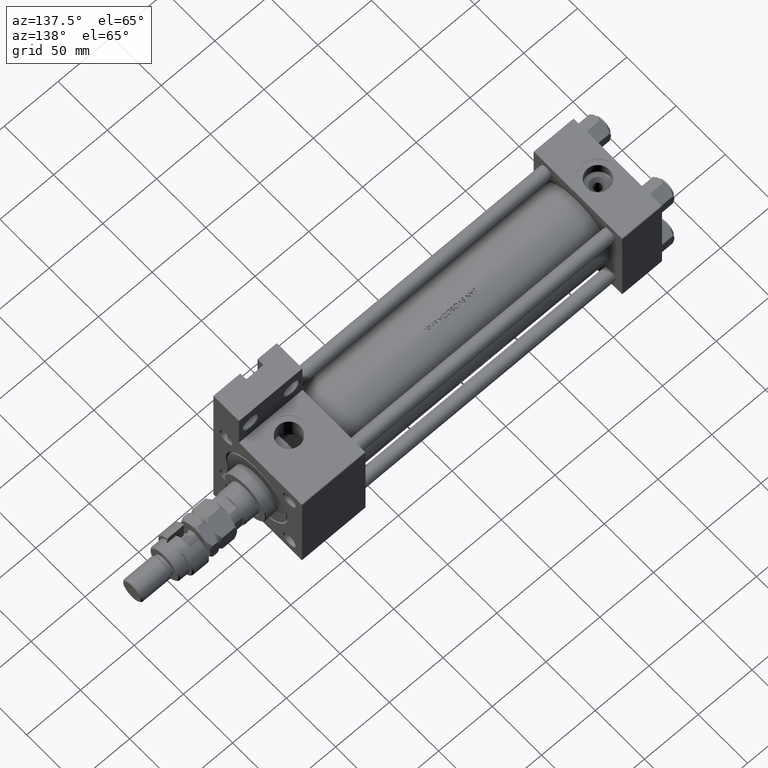
[diagram: clean part render]
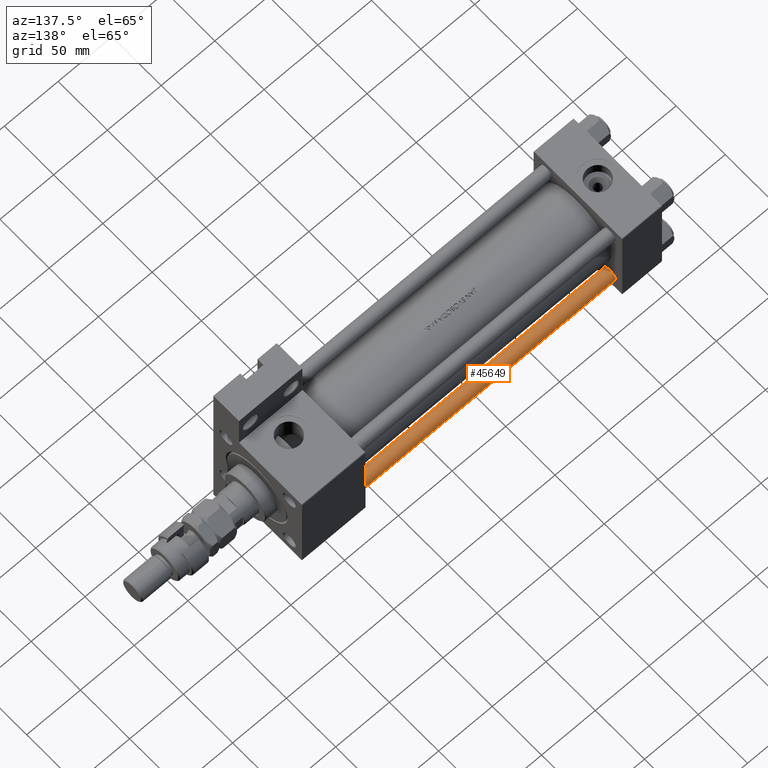
[diagram: same view with one face highlighted and labeled with its STEP entity id]
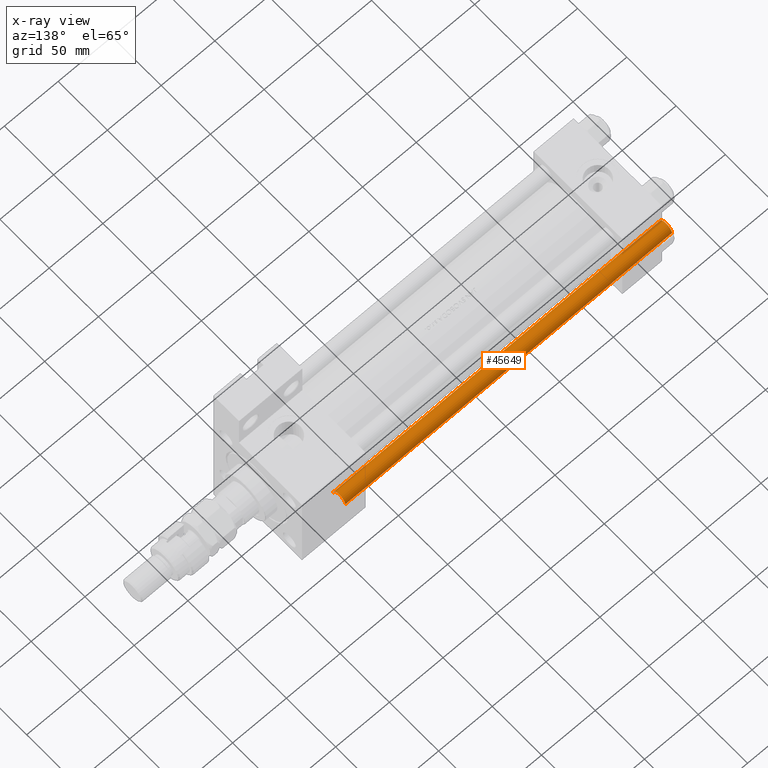
[diagram: x-ray of the same camera — body ghosted, the highlighted face saturated]
A machine part, auxiliary view. The second image highlights one B-rep face of the part: STEP entity #45649.
The next image is the same camera in x-ray: the body ghosted, the highlighted face saturated — about 2% of this face is hidden behind the body in this view.
In plain terms, the highlighted cylindrical surface (edge-blend (fillet) strip) has radius 6 mm, axis along (-1, -0, 0).
Its self-contained STEP definition (entity closure, byte-faithful):
#315 = CARTESIAN_POINT ( 'NONE',  ( -6.000000000000000888, 0.000000000000000000, 305.0000000000000000 ) ) ;
#1113 = VERTEX_POINT ( 'NONE', #3906 ) ;
#3614 = EDGE_CURVE ( 'NONE', #1113, #32902, #8974, .T. ) ;
#3906 = CARTESIAN_POINT ( 'NONE',  ( 6.000000000000000888, 7.347880794884120722E-16, 0.5000000000000004441 ) ) ;
#5911 = EDGE_LOOP ( 'NONE', ( #6683, #46163, #33031, #32039 ) ) ;
#6210 = EDGE_CURVE ( 'NONE', #17051, #40492, #29390, .T. ) ;
#6683 = ORIENTED_EDGE ( 'NONE', *, *, #6210, .T. ) ;
#7572 = CARTESIAN_POINT ( 'NONE',  ( 0.000000000000000000, 0.000000000000000000, 305.0000000000000000 ) ) ;
#8197 = DIRECTION ( 'NONE',  ( -0.000000000000000000, -0.000000000000000000, 1.000000000000000000 ) ) ;
#8974 = CIRCLE ( 'NONE', #27625, 6.000000000000000888 ) ;
#11034 = DIRECTION ( 'NONE',  ( -0.000000000000000000, -0.000000000000000000, -1.000000000000000000 ) ) ;
#14235 = CARTESIAN_POINT ( 'NONE',  ( 6.000000000000000888, 7.347880794884120722E-16, 305.0000000000000000 ) ) ;
#14506 = DIRECTION ( 'NONE',  ( -0.000000000000000000, -0.000000000000000000, -1.000000000000000000 ) ) ;
#16534 = DIRECTION ( 'NONE',  ( -0.000000000000000000, -0.000000000000000000, -1.000000000000000000 ) ) ;
#17051 = VERTEX_POINT ( 'NONE', #40025 ) ;
#17889 = CARTESIAN_POINT ( 'NONE',  ( 0.000000000000000000, 0.000000000000000000, 304.5000000000000000 ) ) ;
#17932 = VECTOR ( 'NONE', #16534, 1000.000000000000000 ) ;
#18562 = EDGE_CURVE ( 'NONE', #17051, #32902, #36737, .T. ) ;
#21481 = CARTESIAN_POINT ( 'NONE',  ( 0.000000000000000000, 0.000000000000000000, 0.5000000000000004441 ) ) ;
#21605 = DIRECTION ( 'NONE',  ( 1.000000000000000000, 0.000000000000000000, 0.000000000000000000 ) ) ;
#26730 = EDGE_CURVE ( 'NONE', #40492, #1113, #47155, .T. ) ;
#27248 = DIRECTION ( 'NONE',  ( -1.000000000000000000, 0.000000000000000000, 0.000000000000000000 ) ) ;
#27625 = AXIS2_PLACEMENT_3D ( 'NONE', #21481, #8197, #41385 ) ;
#29390 = CIRCLE ( 'NONE', #41249, 6.000000000000000888 ) ;
#32039 = ORIENTED_EDGE ( 'NONE', *, *, #18562, .F. ) ;
#32902 = VERTEX_POINT ( 'NONE', #49253 ) ;
#33031 = ORIENTED_EDGE ( 'NONE', *, *, #3614, .T. ) ;
#36017 = CYLINDRICAL_SURFACE ( 'NONE', #44810, 6.000000000000000888 ) ;
#36737 = LINE ( 'NONE', #315, #17932 ) ;
#40025 = CARTESIAN_POINT ( 'NONE',  ( -6.000000000000000888, 0.000000000000000000, 304.5000000000000000 ) ) ;
#40492 = VERTEX_POINT ( 'NONE', #51315 ) ;
#41249 = AXIS2_PLACEMENT_3D ( 'NONE', #17889, #41785, #21605 ) ;
#41385 = DIRECTION ( 'NONE',  ( 1.000000000000000000, 0.000000000000000000, 0.000000000000000000 ) ) ;
#41785 = DIRECTION ( 'NONE',  ( 0.000000000000000000, 0.000000000000000000, -1.000000000000000000 ) ) ;
#44169 = VECTOR ( 'NONE', #14506, 1000.000000000000000 ) ;
#44810 = AXIS2_PLACEMENT_3D ( 'NONE', #7572, #11034, #27248 ) ;
#45649 = ADVANCED_FACE ( 'NONE', ( #47437 ), #36017, .T. ) ;
#46163 = ORIENTED_EDGE ( 'NONE', *, *, #26730, .T. ) ;
#47155 = LINE ( 'NONE', #14235, #44169 ) ;
#47437 = FACE_OUTER_BOUND ( 'NONE', #5911, .T. ) ;
#49253 = CARTESIAN_POINT ( 'NONE',  ( -6.000000000000000888, 0.000000000000000000, 0.5000000000000004441 ) ) ;
#51315 = CARTESIAN_POINT ( 'NONE',  ( 6.000000000000000888, 7.347880794884120722E-16, 304.5000000000000000 ) ) ;